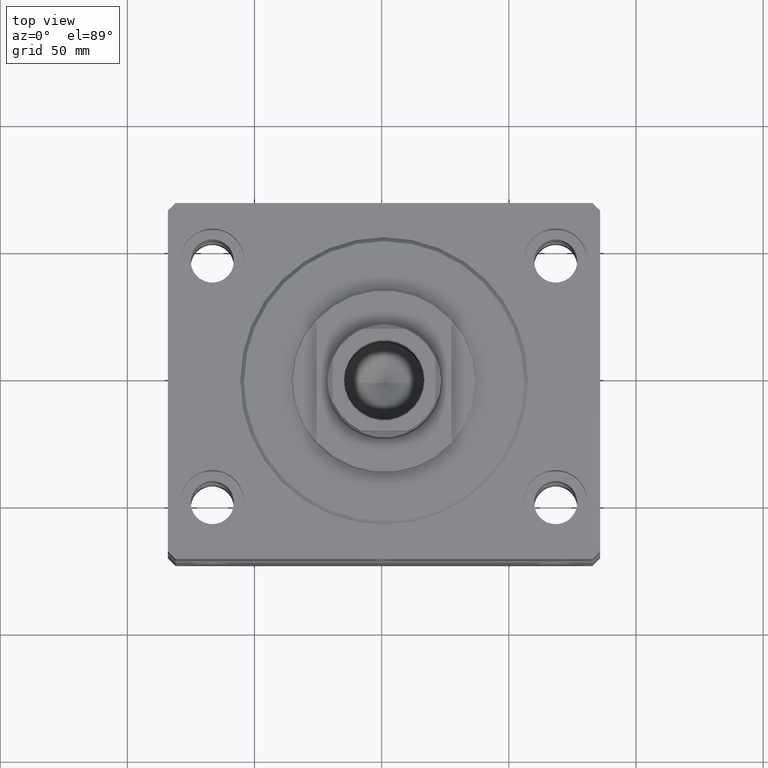
[diagram: clean part render]
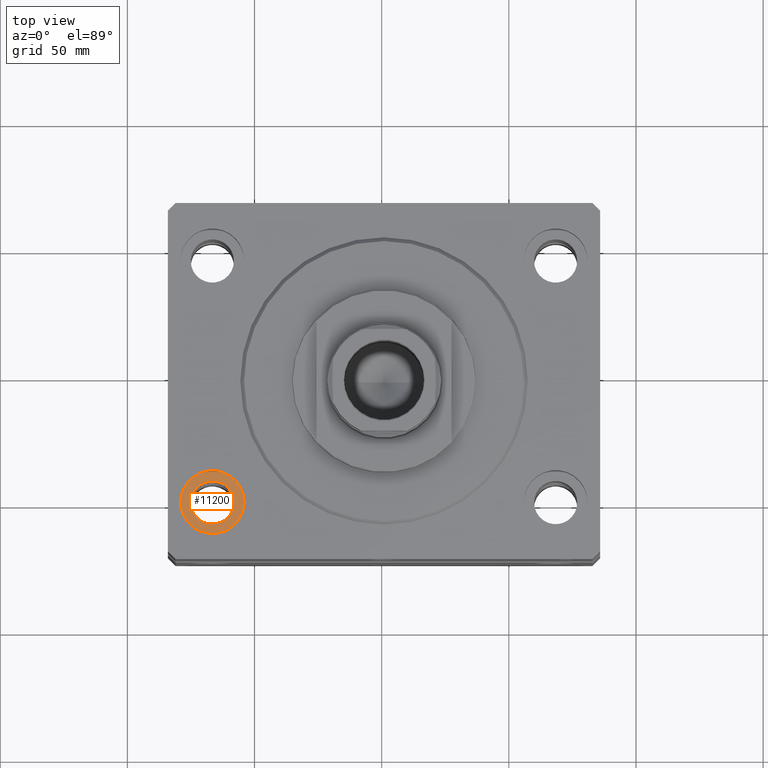
[diagram: same view with one face highlighted and labeled with its STEP entity id]
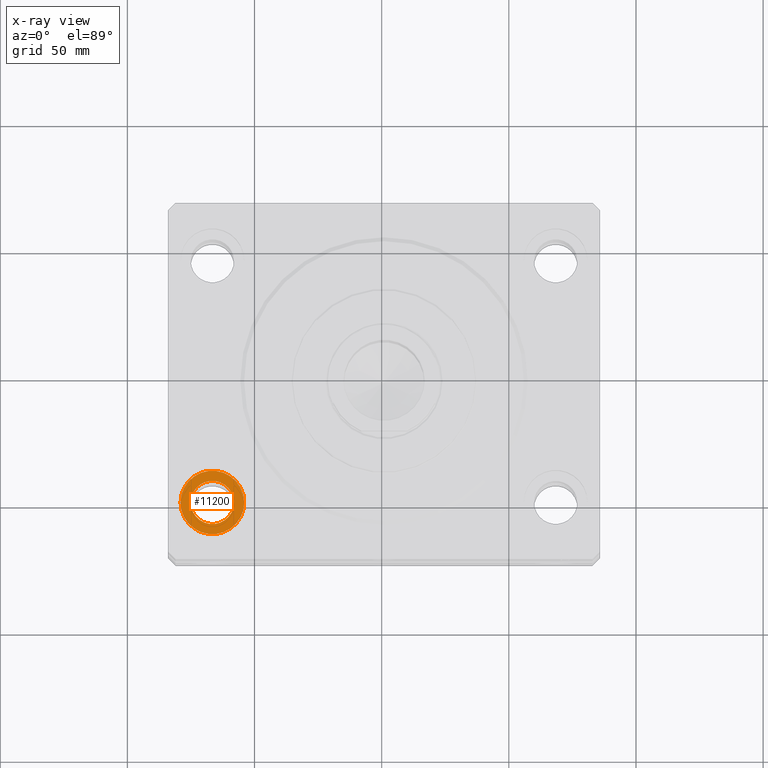
[diagram: x-ray of the same camera — body ghosted, the highlighted face saturated]
A machine part, top view. The second image highlights one B-rep face of the part: STEP entity #11200.
The next image is the same camera in x-ray: the body ghosted, the highlighted face saturated — about 0% of this face is hidden behind the body in this view.
In plain terms, the highlighted planar face has unit normal (0, 0, 1).
Its self-contained STEP definition (entity closure, byte-faithful):
#190 = DIRECTION ( 'NONE',  ( 1.000000000000000000, 0.000000000000000000, 0.000000000000000000 ) ) ;
#624 = CARTESIAN_POINT ( 'NONE',  ( -67.50000000000000000, -47.50000000000000000, -17.00000000000000000 ) ) ;
#2339 = AXIS2_PLACEMENT_3D ( 'NONE', #624, #29404, #4603 ) ;
#3709 = CARTESIAN_POINT ( 'NONE',  ( -67.50000000000000000, -47.50000000000000000, -17.00000000000000000 ) ) ;
#4603 = DIRECTION ( 'NONE',  ( 1.000000000000000000, 0.000000000000000000, 0.000000000000000000 ) ) ;
#4680 = VERTEX_POINT ( 'NONE', #41601 ) ;
#5563 = CARTESIAN_POINT ( 'NONE',  ( -76.00000000000000000, -47.50000000000000000, -17.00000000000000000 ) ) ;
#6080 = DIRECTION ( 'NONE',  ( 0.000000000000000000, 0.000000000000000000, 1.000000000000000000 ) ) ;
#6942 = EDGE_LOOP ( 'NONE', ( #25996, #26387 ) ) ;
#9305 = VERTEX_POINT ( 'NONE', #5563 ) ;
#11200 = ADVANCED_FACE ( 'NONE', ( #22857, #22156 ), #26595, .T. ) ;
#11863 = DIRECTION ( 'NONE',  ( 0.000000000000000000, 0.000000000000000000, 1.000000000000000000 ) ) ;
#14010 = ORIENTED_EDGE ( 'NONE', *, *, #18319, .T. ) ;
#18042 = CIRCLE ( 'NONE', #2339, 8.499999999999992895 ) ;
#18319 = EDGE_CURVE ( 'NONE', #4680, #25038, #29905, .T. ) ;
#20773 = CARTESIAN_POINT ( 'NONE',  ( -67.50000000000000000, -47.50000000000000000, -17.00000000000000000 ) ) ;
#21691 = AXIS2_PLACEMENT_3D ( 'NONE', #20773, #35273, #34798 ) ;
#21863 = CARTESIAN_POINT ( 'NONE',  ( -80.00000000000000000, -47.50000000000000000, -17.00000000000000000 ) ) ;
#22156 = FACE_OUTER_BOUND ( 'NONE', #30112, .T. ) ;
#22857 = FACE_BOUND ( 'NONE', #6942, .T. ) ;
#23803 = AXIS2_PLACEMENT_3D ( 'NONE', #3709, #32249, #190 ) ;
#24304 = DIRECTION ( 'NONE',  ( 1.000000000000000000, 0.000000000000000000, 0.000000000000000000 ) ) ;
#24394 = EDGE_CURVE ( 'NONE', #39325, #9305, #40394, .T. ) ;
#25038 = VERTEX_POINT ( 'NONE', #21863 ) ;
#25675 = EDGE_CURVE ( 'NONE', #9305, #39325, #18042, .T. ) ;
#25996 = ORIENTED_EDGE ( 'NONE', *, *, #24394, .F. ) ;
#26387 = ORIENTED_EDGE ( 'NONE', *, *, #25675, .F. ) ;
#26595 = PLANE ( 'NONE',  #44592 ) ;
#27551 = CIRCLE ( 'NONE', #23803, 12.49999999999999645 ) ;
#27594 = CARTESIAN_POINT ( 'NONE',  ( -67.50000000000000000, -47.50000000000000000, -17.00000000000000000 ) ) ;
#29404 = DIRECTION ( 'NONE',  ( 0.000000000000000000, 0.000000000000000000, 1.000000000000000000 ) ) ;
#29905 = CIRCLE ( 'NONE', #21691, 12.49999999999999645 ) ;
#30112 = EDGE_LOOP ( 'NONE', ( #14010, #37852 ) ) ;
#30687 = AXIS2_PLACEMENT_3D ( 'NONE', #27594, #6080, #24304 ) ;
#31106 = EDGE_CURVE ( 'NONE', #25038, #4680, #27551, .T. ) ;
#32249 = DIRECTION ( 'NONE',  ( 0.000000000000000000, 0.000000000000000000, 1.000000000000000000 ) ) ;
#34798 = DIRECTION ( 'NONE',  ( 1.000000000000000000, 0.000000000000000000, 0.000000000000000000 ) ) ;
#35273 = DIRECTION ( 'NONE',  ( 0.000000000000000000, 0.000000000000000000, 1.000000000000000000 ) ) ;
#35835 = CARTESIAN_POINT ( 'NONE',  ( -59.00000000000001421, -47.50000000000000000, -17.00000000000000000 ) ) ;
#37852 = ORIENTED_EDGE ( 'NONE', *, *, #31106, .T. ) ;
#39325 = VERTEX_POINT ( 'NONE', #35835 ) ;
#40394 = CIRCLE ( 'NONE', #30687, 8.499999999999992895 ) ;
#41601 = CARTESIAN_POINT ( 'NONE',  ( -55.00000000000000711, -47.50000000000000000, -17.00000000000000000 ) ) ;
#43427 = CARTESIAN_POINT ( 'NONE',  ( -67.50000000000000000, -47.50000000000000000, -17.00000000000000000 ) ) ;
#44120 = DIRECTION ( 'NONE',  ( 1.000000000000000000, 0.000000000000000000, -0.000000000000000000 ) ) ;
#44592 = AXIS2_PLACEMENT_3D ( 'NONE', #43427, #11863, #44120 ) ;